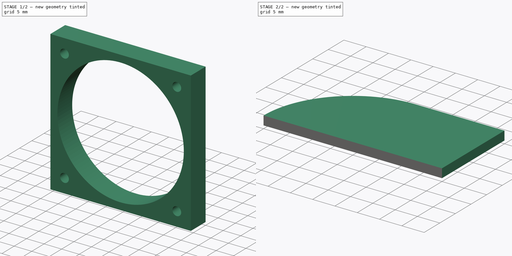
[diagram: build sequence overview — one tinted view per stage of 2, left to right]
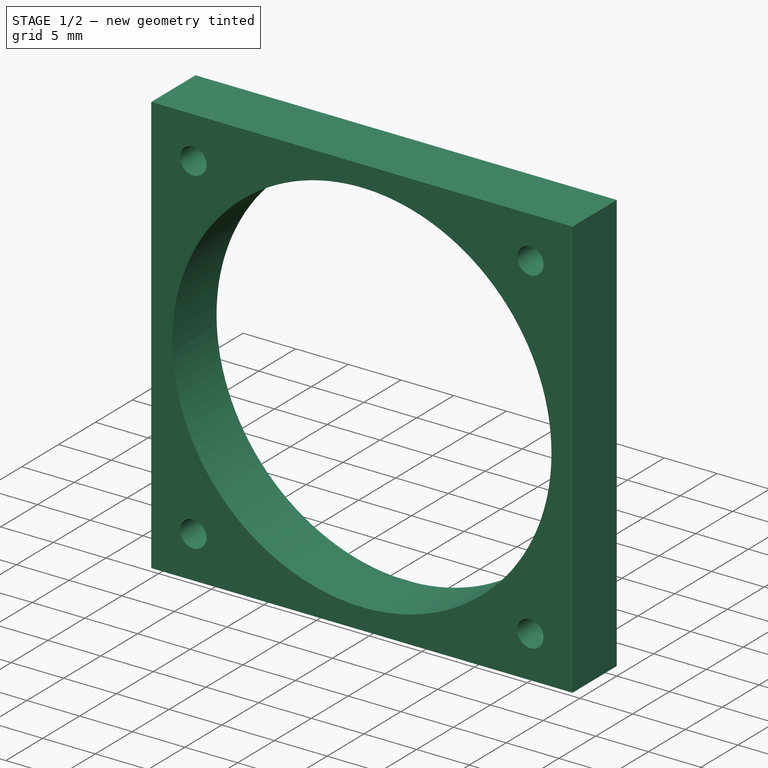
[diagram: stage 1 of 2 — iso view after this stage's code; geometry added in this stage tinted green]
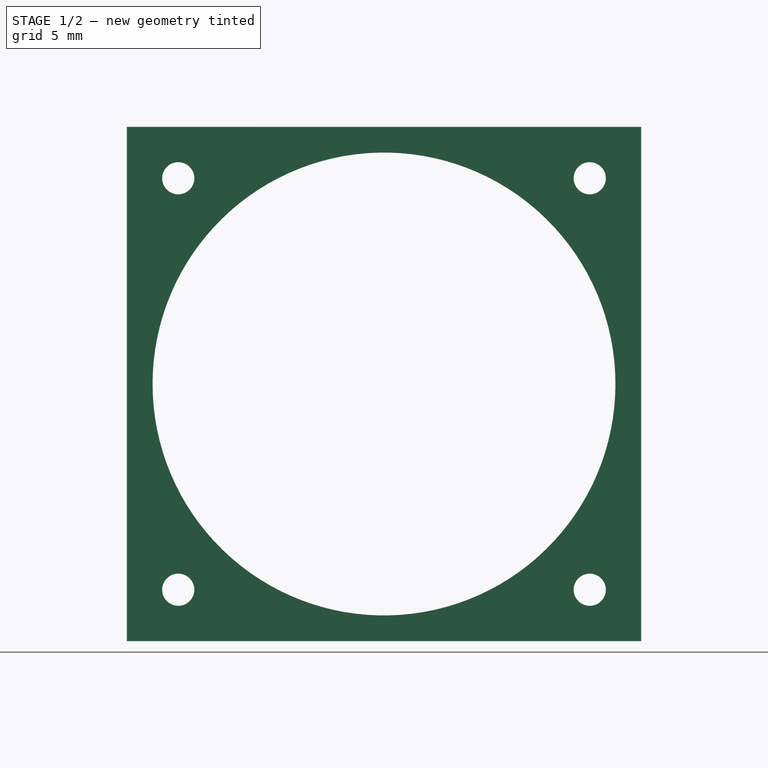
[diagram: stage 1 of 2 — front view after this stage's code; geometry added in this stage tinted green]
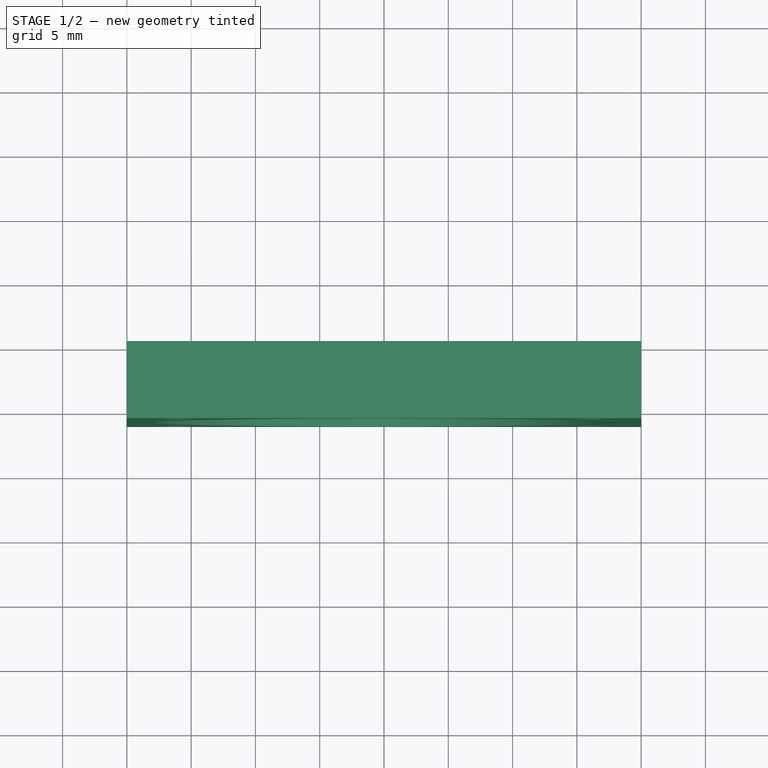
[diagram: stage 1 of 2 — top view after this stage's code; geometry added in this stage tinted green]
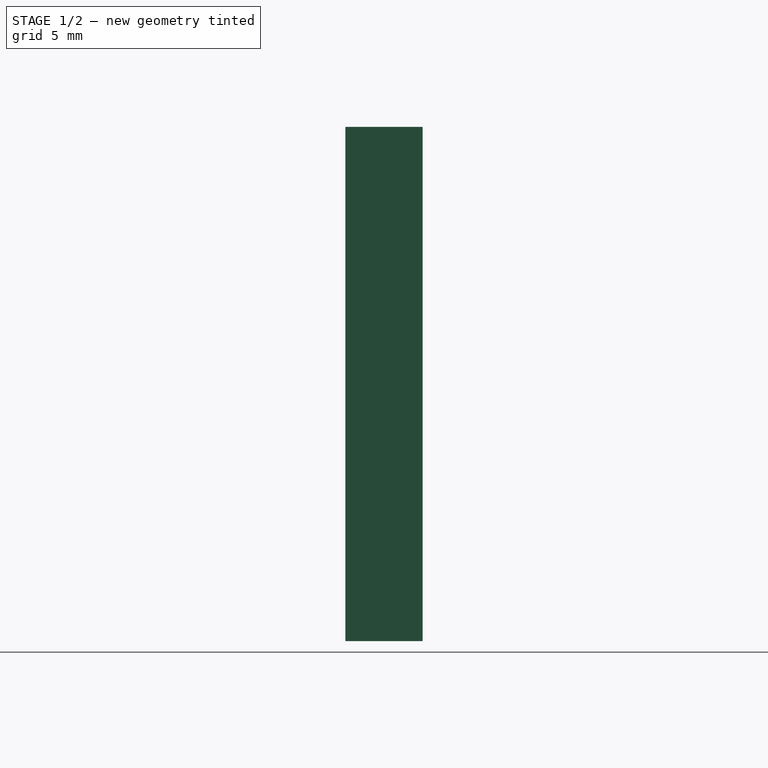
[diagram: stage 1 of 2 — right view after this stage's code; geometry added in this stage tinted green]
FCSTD DOCUMENT  (FreeCAD 0.18R4 (GitTag))
Label: FanMount2
License: All rights reserved
LicenseURL: http://en.wikipedia.org/wiki/All_rights_reserved
objects: Sketcher::SketchObject×4, Spreadsheet::Sheet×3, PartDesign::Pad×1, Part::Extrusion×1, PartDesign::AdditiveLoft×1, PartDesign::Body×1
note: 10 computed .brp shape members not serialized (recipe doc carries the construction recipe); baked Part::Feature solids carry a one-line shape summary decoded from their .brp

FEATURE [Spreadsheet::Sheet] Spreadsheet  label="Fan4010"
  cells = A1=FaceWidth; B1(FaceWidth)==40mm; A2=FaceLength; B2(FaceLength)==40mm; A3=FanOpeningRadius; B3(FanOpeningRadius)==18mm; A4=ScrewToSide; B4(ScrewToSide)==4mm; A5=FanOpeningOffset; B5(FanOpeningOffset)==0mm
FEATURE [Spreadsheet::Sheet] Spreadsheet001  label="M3Screw"
  cells = A1=M3ThreadRadius; B1(M3ThreadRadius)==1.25mm; A2=M3HeadWidth; B2(M3HeadWidth)==5.5mm; A3=M3HeadHeight; B3(M3HeadHeight)==3mm
FEATURE [Spreadsheet::Sheet] Spreadsheet003  label="BlowerMount"
  cells = A1=FanCatchDepth; B1(FanCatchDepth)==20mm; A2=WallFanMountDepth; B2(WallFanMountDepth)==6mm; A3=WallMainDepth; B3(WallMainDepth)==2mm
FEATURE [Sketcher::SketchObject] Sketch  label="BlowerOut"
  MapMode = 5
  Placement = pos=(0,0,0) rot=(1,0,0;1.5708rad)
  Support = -> [XZ_Plane]
  expr: Constraints[24] = Fan4010.ScrewToSide
  expr: Constraints[25] = Fan4010.ScrewToSide
  expr: Constraints[21] = Fan4010.ScrewToSide
  expr: Constraints[18] = M3Screw.M3ThreadRadius
  expr: Constraints[19] = M3Screw.M3ThreadRadius
  expr: Constraints[23] = Fan4010.ScrewToSide
  expr: Constraints[20] = Fan4010.ScrewToSide
  expr: Constraints[15] = Fan4010.ScrewToSide
  expr: Constraints[13] = Fan4010.FanOpeningRadius
  expr: Constraints[11] = Fan4010.FaceLength / 2
  expr: Constraints[10] = Fan4010.FaceWidth / 2
  expr: Constraints[14] = M3Screw.M3ThreadRadius
  expr: Constraints[22] = Fan4010.ScrewToSide
  expr: Constraints[9] = Fan4010.FaceLength
  expr: Constraints[17] = M3Screw.M3ThreadRadius
  expr: Constraints[16] = Fan4010.ScrewToSide
  expr: Constraints[8] = Fan4010.FaceWidth
  sketch-geometry (9):
    g0: LineSegment StartX=-20 StartY=20 StartZ=0 EndX=20 EndY=20 EndZ=0
    g1: LineSegment StartX=20 StartY=20 StartZ=0 EndX=20 EndY=-20 EndZ=0
    g2: LineSegment StartX=20 StartY=-20 StartZ=0 EndX=-20 EndY=-20 EndZ=0
    g3: LineSegment StartX=-20 StartY=-20 StartZ=0 EndX=-20 EndY=20 EndZ=0
    g4: Circle CenterX=0 CenterY=0 CenterZ=0 NormalX=0 NormalY=0 NormalZ=1 AngleXU=0 Radius=18
    g5: Circle CenterX=-16 CenterY=16 CenterZ=0 NormalX=0 NormalY=0 NormalZ=1 AngleXU=0 Radius=1.25
    g6: Circle CenterX=16 CenterY=16 CenterZ=0 NormalX=0 NormalY=0 NormalZ=1 AngleXU=0 Radius=1.25
    g7: Circle CenterX=16 CenterY=-16 CenterZ=0 NormalX=0 NormalY=0 NormalZ=1 AngleXU=0 Radius=1.25
    g8: Circle CenterX=-16 CenterY=-16 CenterZ=0 NormalX=0 NormalY=0 NormalZ=1 AngleXU=0 Radius=1.25
  constraints (26):
    c: Coincident(g0,g1)
    c: Coincident(g1,g2)
    c: Coincident(g2,g3)
    c: Coincident(g3,g0)
    c: Horizontal(g0)
    c: Horizontal(g2)
    c: Vertical(g1)
    c: Vertical(g3)
    c: DistanceX(g0,g0) = 40
    c: DistanceY(g1,g1) = 40
    c: DistanceX(g-1,g0) = 20
    c: DistanceY(g-1,g0) = 20
    c: Coincident(g4,g-1)
    c: Radius(g4) = 18
    c: Radius(g5) = 1.25
    c: DistanceX(g0,g5) = 4
    c: DistanceY(g5,g0) = 4
    c: Radius(g6) = 1.25
    c: Radius(g8) = 1.25
    c: Radius(g7) = 1.25
    c: DistanceX(g6,g0) = 4
    c: DistanceX(g7,g1) = 4
    c: DistanceX(g2,g8) = 4
    c: DistanceY(g6,g0) = 4
    c: DistanceY(g1,g7) = 4
    c: DistanceY(g2,g8) = 4
FEATURE [PartDesign::Pad] Pad
  Length = 6
  Length2 = 100
  Placement = pos=(0,0,0) rot=(1,0,0;1.5708rad)
  Profile = -> Sketch
  Type = 0
  expr: Length = BlowerMount.WallFanMountDepth
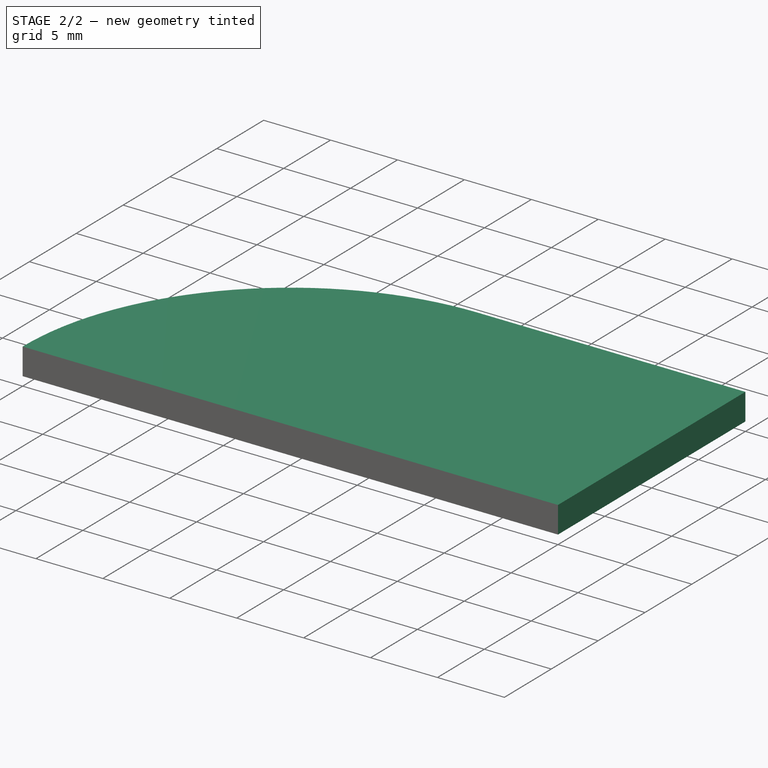
[diagram: stage 2 of 2 — iso view after this stage's code; geometry added in this stage tinted green]
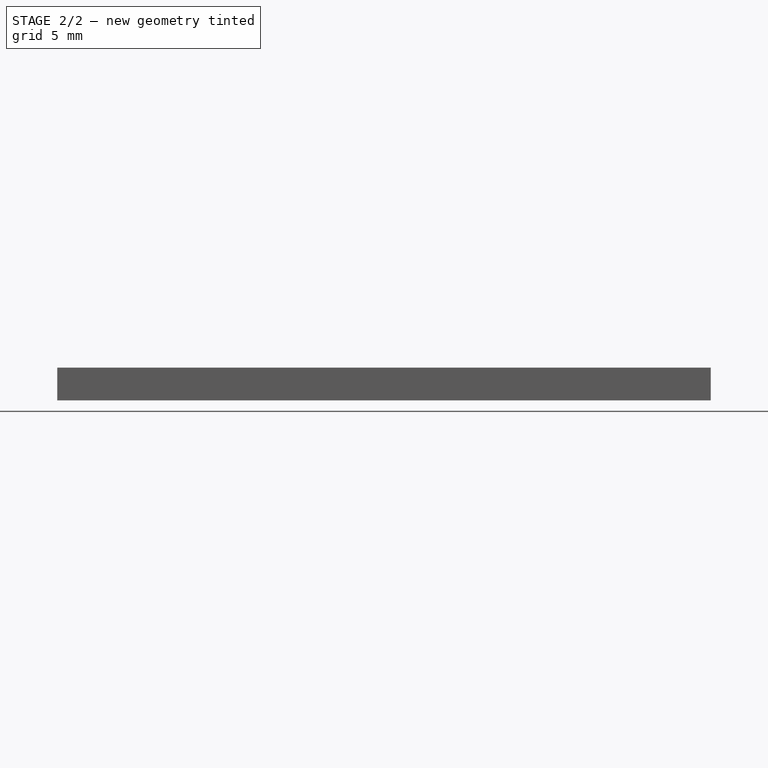
[diagram: stage 2 of 2 — front view after this stage's code; geometry added in this stage tinted green]
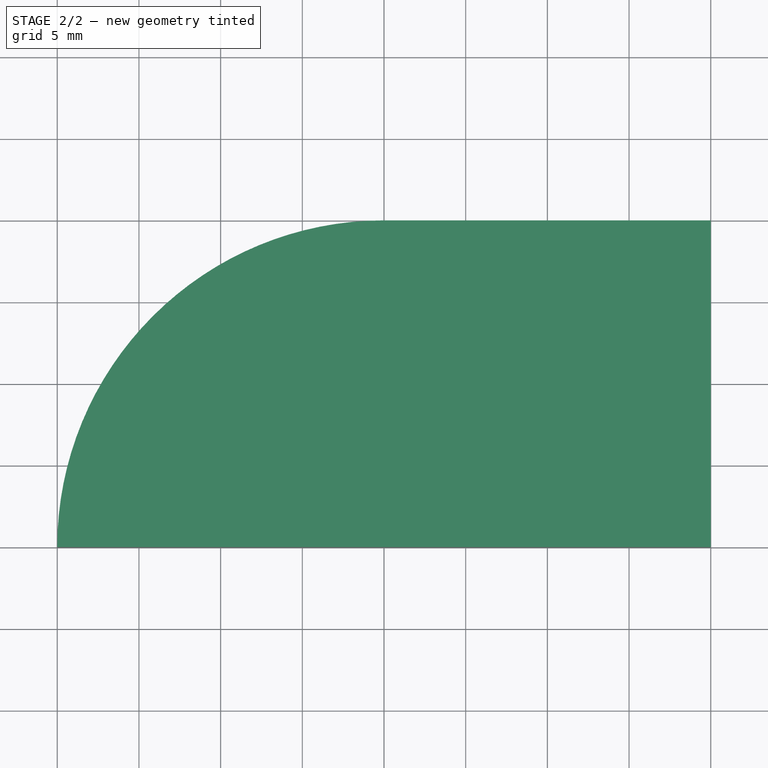
[diagram: stage 2 of 2 — top view after this stage's code; geometry added in this stage tinted green]
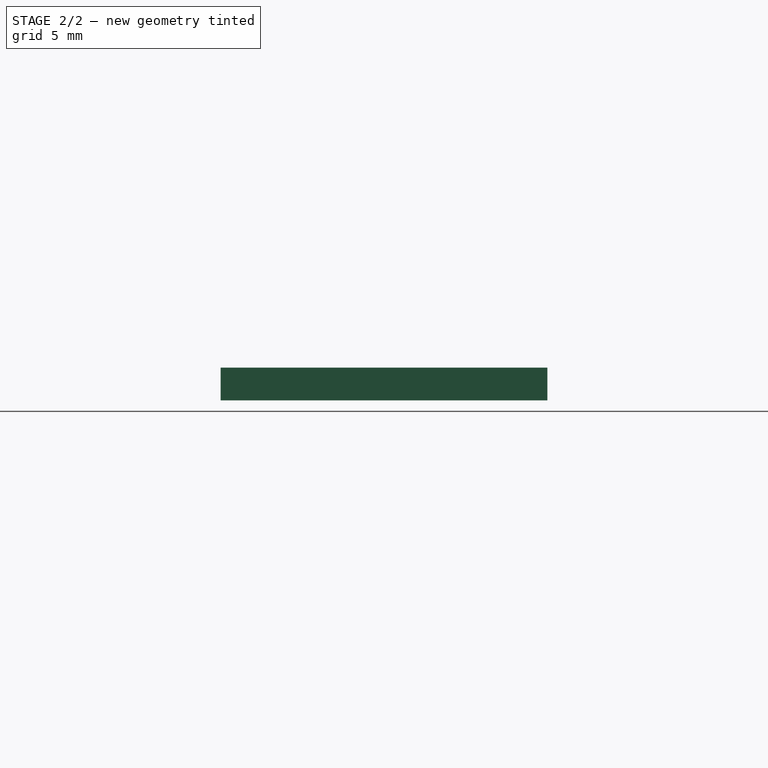
[diagram: stage 2 of 2 — right view after this stage's code; geometry added in this stage tinted green]
FEATURE [Sketcher::SketchObject] Sketch001  label="BlowerOutFace1"
  MapMode = 5
  Placement = pos=(0,-4.4e-15,20) rot=(0,0,1;3.14159rad)
  Support = -> [Pad]
  expr: Constraints[11] = Fan4010.FaceLength
  expr: Constraints[10] = Fan4010.FaceLength / 2
  sketch-geometry (4):
    g0: LineSegment StartX=20 StartY=-4.9e-15 StartZ=0 EndX=-20 EndY=0 EndZ=0
    g1: LineSegment StartX=-20 StartY=-20 StartZ=0 EndX=-20 EndY=0 EndZ=0
    g2: LineSegment StartX=-20 StartY=-20 StartZ=0 EndX=-3.6e-15 EndY=-20 EndZ=0
    g3: ArcOfCircle CenterX=0 CenterY=0 CenterZ=0 NormalX=0 NormalY=0 NormalZ=1 AngleXU=0 Radius=20 StartAngle=4.71239 EndAngle=6.28319
  constraints (12):
    c: PointOnObject(g0,g-1)
    c: PointOnObject(g0,g-1)
    c: Coincident(g1,g0)
    c: Vertical(g1)
    c: Coincident(g2,g1)
    c: PointOnObject(g2,g-2)
    c: Horizontal(g2)
    c: Coincident(g3,g-1)
    c: Coincident(g3,g0)
    c: Coincident(g3,g2)
    c: DistanceY(g1,g1) = 20
    c: DistanceX(g0,g0) = 40
FEATURE [Part::Extrusion] Extrude
  Base = -> Sketch001
  Dir = (0,-2e-16,1)
  DirMode = 2
  FaceMakerClass = Part::FaceMakerBullseye
  LengthFwd = 2
  LengthRev = 0
  Reversed = true
  Solid = true
  Symmetric = false
  expr: LengthFwd = BlowerMount.WallMainDepth
FEATURE [Sketcher::SketchObject] Sketch002
  AttachmentOffset = pos=(1,-20,50) rot=(0,0,1;0rad)
  MapMode = 5
  Placement = pos=(1,-56,-20) rot=(1,0,0;1.5708rad)
  Support = -> [Pad]
  sketch-geometry (1):
    g0: Circle CenterX=0 CenterY=0 CenterZ=0 NormalX=0 NormalY=0 NormalZ=1 AngleXU=0 Radius=8.82649
  constraints (1):
    c: Coincident(g0,g-1)
FEATURE [Sketcher::SketchObject] Sketch003
  MapMode = 5
  Placement = pos=(0,-6,-1.3e-15) rot=(1,0,0;1.5708rad)
  Support = -> [Pad]
  sketch-geometry (1):
    g0: Circle CenterX=0 CenterY=0 CenterZ=0 NormalX=0 NormalY=0 NormalZ=1 AngleXU=0 Radius=18.0035
  constraints (1):
    c: Coincident(g0,g-1)
FEATURE [PartDesign::AdditiveLoft] AdditiveLoft
  BaseFeature = -> Pad
  Closed = false
  Placement = pos=(0,0,0) rot=(1,0,0;1.5708rad)
  Profile = -> Sketch002
  Ruled = false
FEATURE [PartDesign::Body] Body  label="FanMount2"
  Group = -> [Sketch,Pad,Sketch001,Sketch002,Sketch003,AdditiveLoft]
  Origin = -> Origin
  Tip = -> AdditiveLoft
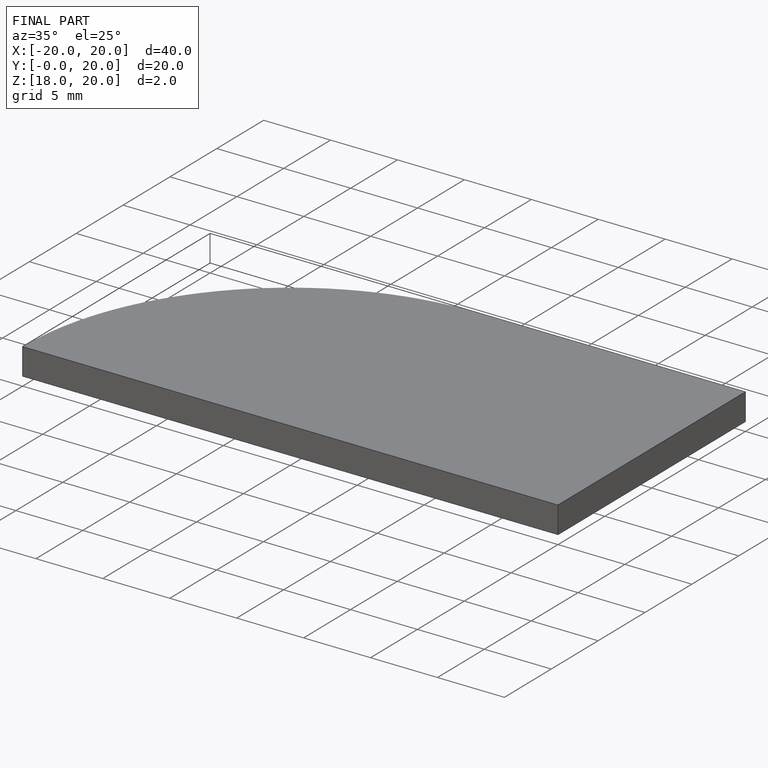
[diagram: finished part — iso view with bounding-box wireframe]
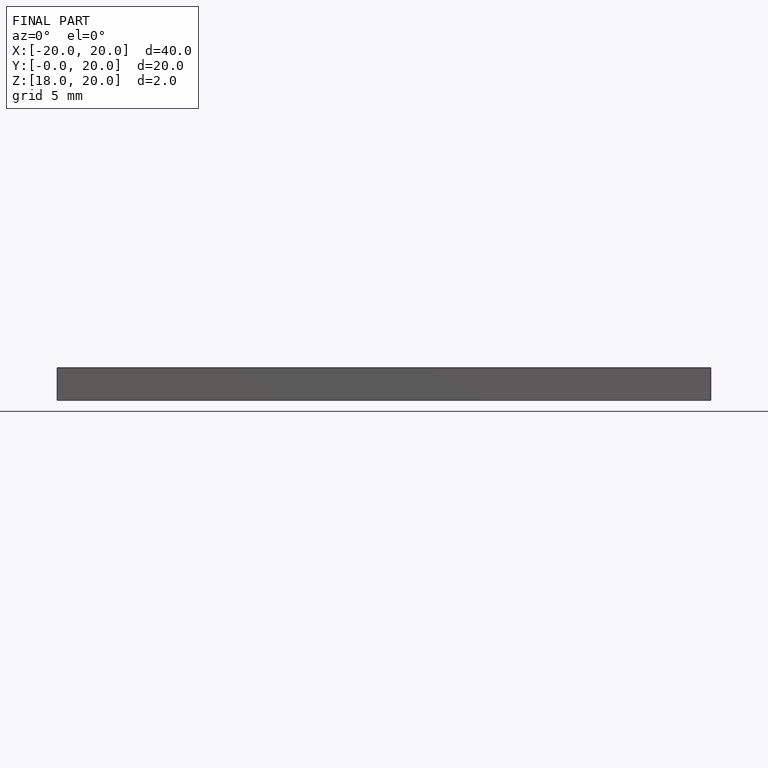
[diagram: finished part — front view with bounding-box wireframe]
